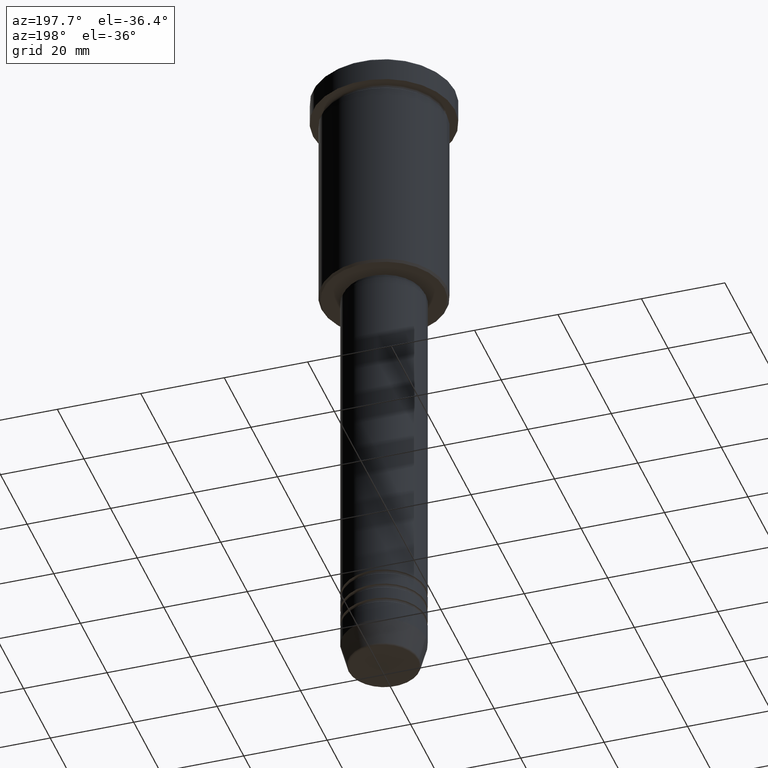
[diagram: clean part render]
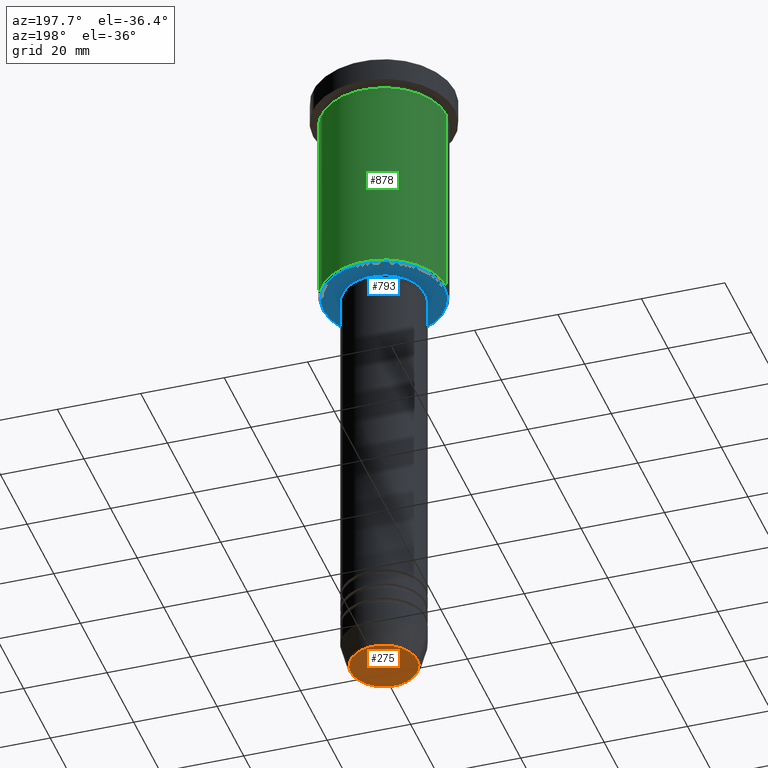
[diagram: same view with three faces highlighted in distinct colors, each labeled with its STEP entity id]
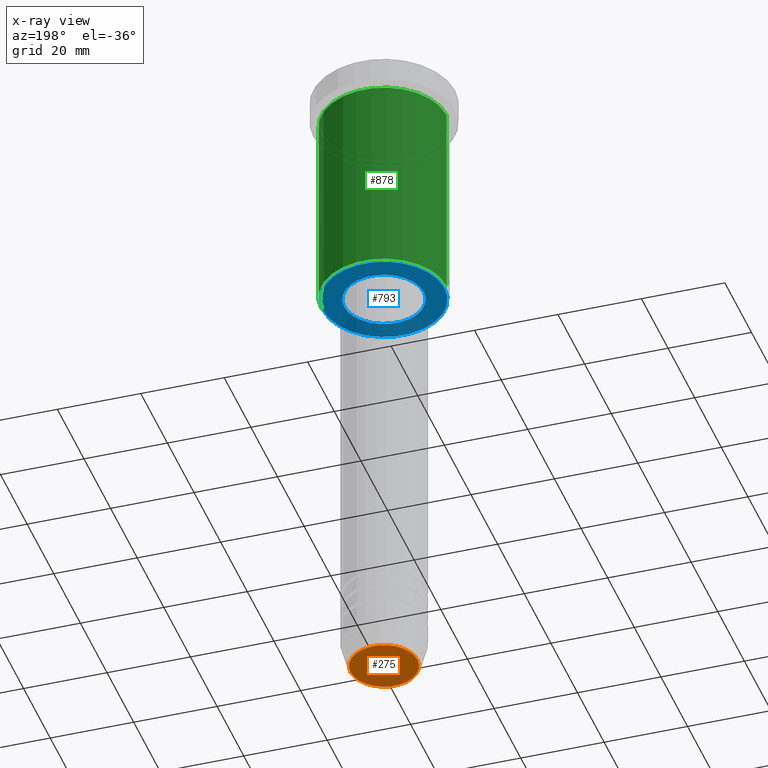
[diagram: x-ray of the same camera — body ghosted, the three highlighted faces saturated]
A machine part, auxiliary view with three faces highlighted in distinct colors.
The next image is the same camera in x-ray (body ghosted, the three faces saturated) — at least one of them is partly hidden behind the body in this view.
Their STEP definitions:

[orange] entity #275 — the highlighted planar face has unit normal (0, -0, 1).
#41 = EDGE_CURVE ( 'NONE', #443, #365, #612, .T. ) ;
#143 = CARTESIAN_POINT ( 'NONE',  ( 8.008641351423781529, 0.000000000000000000, -160.0000000000000284 ) ) ;
#212 = FACE_OUTER_BOUND ( 'NONE', #869, .T. ) ;
#275 = ADVANCED_FACE ( 'NONE', ( #212 ), #675, .F. ) ;
#295 = CARTESIAN_POINT ( 'NONE',  ( -8.008641351423781529, 1.010348648938493172E-15, -160.0000000000000284 ) ) ;
#329 = DIRECTION ( 'NONE',  ( 1.000000000000000000, 0.000000000000000000, 0.000000000000000000 ) ) ;
#365 = VERTEX_POINT ( 'NONE', #295 ) ;
#400 = ORIENTED_EDGE ( 'NONE', *, *, #41, .T. ) ;
#420 = CARTESIAN_POINT ( 'NONE',  ( 0.000000000000000000, 0.000000000000000000, -160.0000000000000284 ) ) ;
#443 = VERTEX_POINT ( 'NONE', #143 ) ;
#445 = EDGE_CURVE ( 'NONE', #365, #443, #1009, .T. ) ;
#465 = CARTESIAN_POINT ( 'NONE',  ( 0.000000000000000000, 0.000000000000000000, -160.0000000000000284 ) ) ;
#546 = DIRECTION ( 'NONE',  ( 0.000000000000000000, 0.000000000000000000, -1.000000000000000000 ) ) ;
#599 = AXIS2_PLACEMENT_3D ( 'NONE', #420, #783, #329 ) ;
#612 = CIRCLE ( 'NONE', #1007, 8.008641351423781529 ) ;
#652 = DIRECTION ( 'NONE',  ( 0.000000000000000000, -0.000000000000000000, 1.000000000000000000 ) ) ;
#675 = PLANE ( 'NONE',  #1083 ) ;
#721 = CARTESIAN_POINT ( 'NONE',  ( 0.000000000000000000, 0.000000000000000000, -160.0000000000000284 ) ) ;
#783 = DIRECTION ( 'NONE',  ( 0.000000000000000000, 0.000000000000000000, -1.000000000000000000 ) ) ;
#869 = EDGE_LOOP ( 'NONE', ( #400, #895 ) ) ;
#895 = ORIENTED_EDGE ( 'NONE', *, *, #445, .T. ) ;
#915 = DIRECTION ( 'NONE',  ( 1.000000000000000000, 0.000000000000000000, 0.000000000000000000 ) ) ;
#919 = DIRECTION ( 'NONE',  ( 1.000000000000000000, 0.000000000000000000, 0.000000000000000000 ) ) ;
#1007 = AXIS2_PLACEMENT_3D ( 'NONE', #721, #546, #915 ) ;
#1009 = CIRCLE ( 'NONE', #599, 8.008641351423781529 ) ;
#1083 = AXIS2_PLACEMENT_3D ( 'NONE', #465, #652, #919 ) ;

[blue] entity #793 — the highlighted planar face has unit normal (0, 0, -1).
#27 = ORIENTED_EDGE ( 'NONE', *, *, #756, .T. ) ;
#54 = CIRCLE ( 'NONE', #425, 14.49999999999998401 ) ;
#104 = DIRECTION ( 'NONE',  ( 1.000000000000000000, 0.000000000000000000, 0.000000000000000000 ) ) ;
#110 = CARTESIAN_POINT ( 'NONE',  ( -9.500000000000001776, 1.163414459189985682E-15, -56.00000000000000000 ) ) ;
#122 = VERTEX_POINT ( 'NONE', #375 ) ;
#139 = EDGE_CURVE ( 'NONE', #1073, #155, #176, .T. ) ;
#142 = ORIENTED_EDGE ( 'NONE', *, *, #412, .T. ) ;
#155 = VERTEX_POINT ( 'NONE', #110 ) ;
#176 = CIRCLE ( 'NONE', #932, 9.500000000000001776 ) ;
#179 = CIRCLE ( 'NONE', #469, 9.500000000000001776 ) ;
#196 = CARTESIAN_POINT ( 'NONE',  ( 0.000000000000000000, 0.000000000000000000, -56.00000000000000000 ) ) ;
#234 = DIRECTION ( 'NONE',  ( -1.000000000000000000, 0.000000000000000000, 0.000000000000000000 ) ) ;
#286 = DIRECTION ( 'NONE',  ( -0.000000000000000000, -0.000000000000000000, 1.000000000000000000 ) ) ;
#298 = CARTESIAN_POINT ( 'NONE',  ( 0.000000000000000000, 0.000000000000000000, -56.00000000000000000 ) ) ;
#305 = CIRCLE ( 'NONE', #953, 14.49999999999998401 ) ;
#306 = DIRECTION ( 'NONE',  ( -1.000000000000000000, 0.000000000000000000, 0.000000000000000000 ) ) ;
#353 = CARTESIAN_POINT ( 'NONE',  ( 9.500000000000001776, 0.000000000000000000, -56.00000000000000000 ) ) ;
#360 = EDGE_LOOP ( 'NONE', ( #692, #27 ) ) ;
#362 = EDGE_CURVE ( 'NONE', #640, #122, #54, .T. ) ;
#375 = CARTESIAN_POINT ( 'NONE',  ( -14.49999999999998401, 1.806354028742345013E-15, -56.00000000000000000 ) ) ;
#412 = EDGE_CURVE ( 'NONE', #122, #640, #305, .T. ) ;
#425 = AXIS2_PLACEMENT_3D ( 'NONE', #825, #1030, #306 ) ;
#469 = AXIS2_PLACEMENT_3D ( 'NONE', #298, #286, #104 ) ;
#501 = FACE_BOUND ( 'NONE', #360, .T. ) ;
#531 = ORIENTED_EDGE ( 'NONE', *, *, #362, .T. ) ;
#544 = PLANE ( 'NONE',  #885 ) ;
#559 = CARTESIAN_POINT ( 'NONE',  ( 14.49999999999998401, 0.000000000000000000, -56.00000000000000000 ) ) ;
#568 = DIRECTION ( 'NONE',  ( 0.000000000000000000, 0.000000000000000000, -1.000000000000000000 ) ) ;
#640 = VERTEX_POINT ( 'NONE', #559 ) ;
#677 = DIRECTION ( 'NONE',  ( -0.000000000000000000, -0.000000000000000000, 1.000000000000000000 ) ) ;
#692 = ORIENTED_EDGE ( 'NONE', *, *, #139, .T. ) ;
#740 = DIRECTION ( 'NONE',  ( 0.000000000000000000, 0.000000000000000000, -1.000000000000000000 ) ) ;
#746 = CARTESIAN_POINT ( 'NONE',  ( 0.000000000000000000, 0.000000000000000000, -56.00000000000000000 ) ) ;
#756 = EDGE_CURVE ( 'NONE', #155, #1073, #179, .T. ) ;
#788 = EDGE_LOOP ( 'NONE', ( #531, #142 ) ) ;
#793 = ADVANCED_FACE ( 'NONE', ( #1050, #501 ), #544, .T. ) ;
#825 = CARTESIAN_POINT ( 'NONE',  ( 0.000000000000000000, 0.000000000000000000, -56.00000000000000000 ) ) ;
#885 = AXIS2_PLACEMENT_3D ( 'NONE', #906, #740, #1101 ) ;
#906 = CARTESIAN_POINT ( 'NONE',  ( 0.000000000000000000, 15.00000000000000000, -56.00000000000000000 ) ) ;
#932 = AXIS2_PLACEMENT_3D ( 'NONE', #746, #677, #945 ) ;
#945 = DIRECTION ( 'NONE',  ( 1.000000000000000000, 0.000000000000000000, 0.000000000000000000 ) ) ;
#953 = AXIS2_PLACEMENT_3D ( 'NONE', #196, #568, #234 ) ;
#1030 = DIRECTION ( 'NONE',  ( 0.000000000000000000, 0.000000000000000000, -1.000000000000000000 ) ) ;
#1050 = FACE_OUTER_BOUND ( 'NONE', #788, .T. ) ;
#1073 = VERTEX_POINT ( 'NONE', #353 ) ;
#1101 = DIRECTION ( 'NONE',  ( -1.000000000000000000, 0.000000000000000000, -0.000000000000000000 ) ) ;

[green] entity #878 — the highlighted cylindrical surface (partial cylindrical patch) has radius 15 mm, axis along (-0, -0, 1).
#39 = DIRECTION ( 'NONE',  ( -1.000000000000000000, 0.000000000000000000, 0.000000000000000000 ) ) ;
#55 = VECTOR ( 'NONE', #637, 1000.000000000000000 ) ;
#187 = CARTESIAN_POINT ( 'NONE',  ( 0.000000000000000000, 0.000000000000000000, 0.000000000000000000 ) ) ;
#220 = EDGE_LOOP ( 'NONE', ( #701, #520, #981, #487 ) ) ;
#235 = VERTEX_POINT ( 'NONE', #760 ) ;
#294 = DIRECTION ( 'NONE',  ( -0.000000000000000000, -0.000000000000000000, 1.000000000000000000 ) ) ;
#321 = CARTESIAN_POINT ( 'NONE',  ( 0.000000000000000000, 0.000000000000000000, -6.999999999999995559 ) ) ;
#336 = CARTESIAN_POINT ( 'NONE',  ( 0.000000000000000000, 0.000000000000000000, -55.49999999999997158 ) ) ;
#369 = LINE ( 'NONE', #918, #55 ) ;
#383 = CARTESIAN_POINT ( 'NONE',  ( -15.00000000000000000, 1.836970198721029589E-15, -6.999999999999995559 ) ) ;
#409 = VERTEX_POINT ( 'NONE', #383 ) ;
#438 = AXIS2_PLACEMENT_3D ( 'NONE', #321, #294, #664 ) ;
#487 = ORIENTED_EDGE ( 'NONE', *, *, #654, .F. ) ;
#520 = ORIENTED_EDGE ( 'NONE', *, *, #968, .T. ) ;
#555 = VERTEX_POINT ( 'NONE', #733 ) ;
#558 = DIRECTION ( 'NONE',  ( -0.000000000000000000, -0.000000000000000000, 1.000000000000000000 ) ) ;
#629 = CIRCLE ( 'NONE', #1085, 15.00000000000000000 ) ;
#637 = DIRECTION ( 'NONE',  ( -0.000000000000000000, -0.000000000000000000, 1.000000000000000000 ) ) ;
#653 = DIRECTION ( 'NONE',  ( -0.000000000000000000, -0.000000000000000000, 1.000000000000000000 ) ) ;
#654 = EDGE_CURVE ( 'NONE', #555, #1080, #369, .T. ) ;
#658 = FACE_OUTER_BOUND ( 'NONE', #220, .T. ) ;
#664 = DIRECTION ( 'NONE',  ( 1.000000000000000000, 0.000000000000000000, 0.000000000000000000 ) ) ;
#676 = EDGE_CURVE ( 'NONE', #1080, #409, #1158, .T. ) ;
#698 = AXIS2_PLACEMENT_3D ( 'NONE', #187, #558, #923 ) ;
#701 = ORIENTED_EDGE ( 'NONE', *, *, #777, .T. ) ;
#733 = CARTESIAN_POINT ( 'NONE',  ( 15.00000000000000000, 0.000000000000000000, -55.49999999999997158 ) ) ;
#760 = CARTESIAN_POINT ( 'NONE',  ( -15.00000000000000000, 1.836970198721029589E-15, -55.49999999999997158 ) ) ;
#777 = EDGE_CURVE ( 'NONE', #555, #235, #629, .T. ) ;
#830 = CYLINDRICAL_SURFACE ( 'NONE', #698, 15.00000000000000000 ) ;
#866 = VECTOR ( 'NONE', #653, 1000.000000000000000 ) ;
#878 = ADVANCED_FACE ( 'NONE', ( #658 ), #830, .T. ) ;
#918 = CARTESIAN_POINT ( 'NONE',  ( 15.00000000000000000, 0.000000000000000000, 0.000000000000000000 ) ) ;
#923 = DIRECTION ( 'NONE',  ( 1.000000000000000000, 0.000000000000000000, 0.000000000000000000 ) ) ;
#944 = LINE ( 'NONE', #1099, #866 ) ;
#968 = EDGE_CURVE ( 'NONE', #235, #409, #944, .T. ) ;
#981 = ORIENTED_EDGE ( 'NONE', *, *, #676, .F. ) ;
#1079 = CARTESIAN_POINT ( 'NONE',  ( 15.00000000000000000, 0.000000000000000000, -6.999999999999995559 ) ) ;
#1080 = VERTEX_POINT ( 'NONE', #1079 ) ;
#1085 = AXIS2_PLACEMENT_3D ( 'NONE', #336, #1136, #39 ) ;
#1099 = CARTESIAN_POINT ( 'NONE',  ( -15.00000000000000000, 1.836970198721029589E-15, 0.000000000000000000 ) ) ;
#1136 = DIRECTION ( 'NONE',  ( -0.000000000000000000, -0.000000000000000000, 1.000000000000000000 ) ) ;
#1158 = CIRCLE ( 'NONE', #438, 15.00000000000000000 ) ;